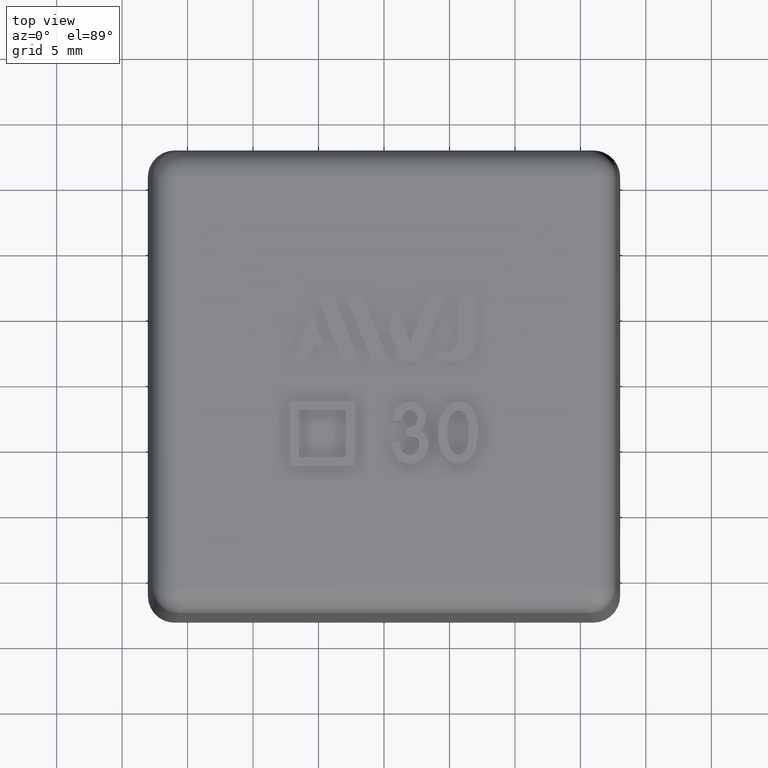
[diagram: clean part render]
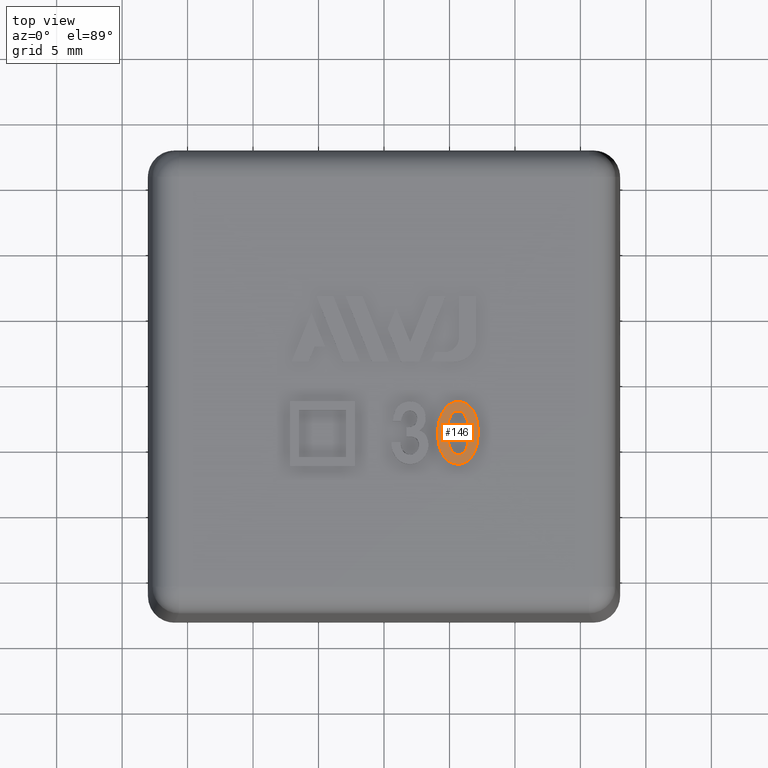
[diagram: same view with one face highlighted and labeled with its STEP entity id]
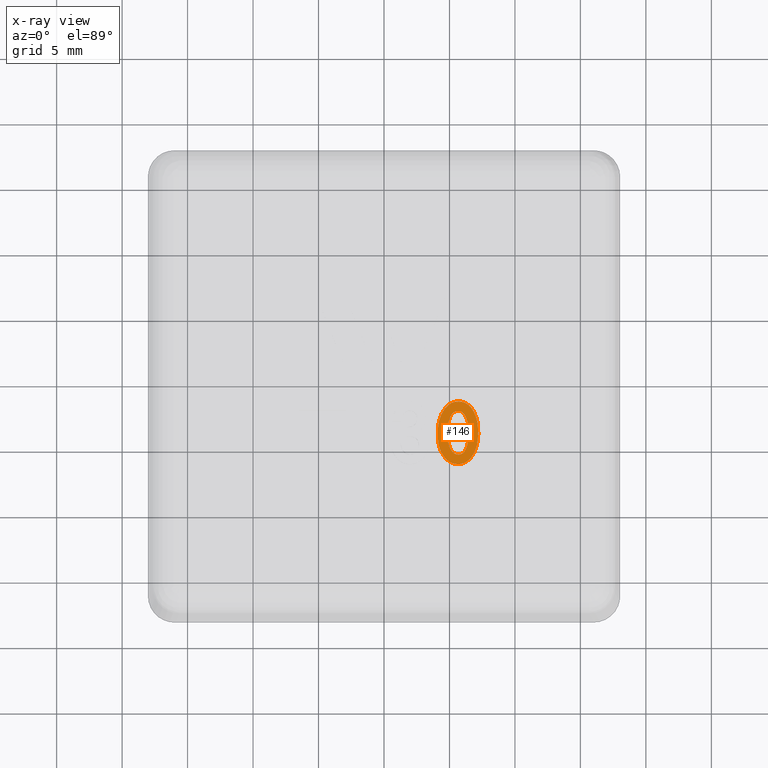
[diagram: x-ray of the same camera — body ghosted, the highlighted face saturated]
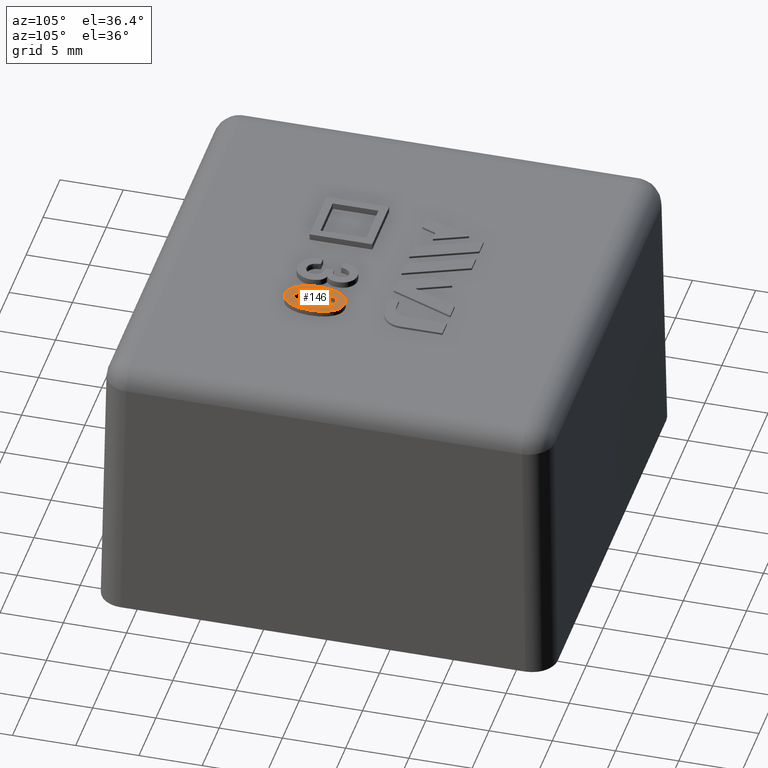
[diagram: same view with one face highlighted and labeled with its STEP entity id]
A machine part, top view. The second image highlights one B-rep face of the part: STEP entity #146.
The next image is the same camera in x-ray: the body ghosted, the highlighted face saturated — about 0% of this face is hidden behind the body in this view.
A second angle (auxiliary view) of the same face is appended — the face is thin or edge-on in the first view.
In plain terms, the highlighted planar face has unit normal (0, 0, 1).
Its self-contained STEP definition (entity closure, byte-faithful):
#146 = ADVANCED_FACE( '', ( #308, #309 ), #310, .T. );
#308 = FACE_OUTER_BOUND( '', #483, .T. );
#309 = FACE_BOUND( '', #484, .T. );
#310 = PLANE( '', #485 );
#483 = EDGE_LOOP( '', ( #1085 ) );
#484 = EDGE_LOOP( '', ( #1086 ) );
#485 = AXIS2_PLACEMENT_3D( '', #1087, #1088, #1089 );
#1085 = ORIENTED_EDGE( '', *, *, #1348, .F. );
#1086 = ORIENTED_EDGE( '', *, *, #1347, .F. );
#1087 = CARTESIAN_POINT( '', ( 6.73869744318178, -2.12522727272729, 22.7860000000000 ) );
#1088 = DIRECTION( '', ( 0.000000000000000, 0.000000000000000, 1.00000000000000 ) );
#1089 = DIRECTION( '', ( 0.000000000000000, -1.00000000000000, 0.000000000000000 ) );
#1347 = EDGE_CURVE( '', #1645, #1645, #1646, .T. );
#1348 = EDGE_CURVE( '', #1647, #1647, #1648, .T. );
#1645 = VERTEX_POINT( '', #2203 );
#1646 = B_SPLINE_CURVE_WITH_KNOTS( '', 2, ( #2204, #2205, #2206, #2207, #2208, #2209, #2210, #2211, #2212, #2213, #2214, #2215, #2216, #2217, #2218, #2219, #2220 ), .UNSPECIFIED., .T., .F., ( 3, 2, 2, 2, 2, 2, 2, 2, 3 ), ( 0.000000000000000, 1.00000000000000, 2.00000000000000, 3.00000000000000, 4.00000000000000, 5.00000000000000, 6.00000000000000, 7.00000000000000, 8.00000000000000 ), .UNSPECIFIED. );
#1647 = VERTEX_POINT( '', #2221 );
#1648 = B_SPLINE_CURVE_WITH_KNOTS( '', 2, ( #2222, #2223, #2224, #2225, #2226, #2227, #2228, #2229, #2230, #2231, #2232, #2233, #2234, #2235, #2236, #2237, #2238 ), .UNSPECIFIED., .T., .F., ( 3, 2, 2, 2, 2, 2, 2, 2, 3 ), ( 0.000000000000000, 1.00000000000000, 2.00000000000000, 3.00000000000000, 4.00000000000000, 5.00000000000000, 6.00000000000000, 7.00000000000000, 8.00000000000000 ), .UNSPECIFIED. );
#2203 = CARTESIAN_POINT( '', ( 4.99606107954542, -4.97677272727274, 22.7860000000000 ) );
#2204 = CARTESIAN_POINT( '', ( 4.99606107954542, -4.97677272727274, 22.7860000000000 ) );
#2205 = CARTESIAN_POINT( '', ( 5.20060653409087, -5.52222727272729, 22.7860000000000 ) );
#2206 = CARTESIAN_POINT( '', ( 5.58729458830470, -5.58851665344966, 22.7860000000000 ) );
#2207 = CARTESIAN_POINT( '', ( 5.99606107954542, -5.65859090909092, 22.7860000000000 ) );
#2208 = CARTESIAN_POINT( '', ( 6.23816071195887, -5.19987581609701, 22.7860000000000 ) );
#2209 = CARTESIAN_POINT( '', ( 6.42787926136360, -4.84040909090910, 22.7860000000000 ) );
#2210 = CARTESIAN_POINT( '', ( 6.46962397637564, -4.20380218697547, 22.7860000000000 ) );
#2211 = CARTESIAN_POINT( '', ( 6.51878835227269, -3.45404545454547, 22.7860000000000 ) );
#2212 = CARTESIAN_POINT( '', ( 6.33371061179875, -2.90969915903388, 22.7860000000000 ) );
#2213 = CARTESIAN_POINT( '', ( 6.13242471590905, -2.31768181818183, 22.7860000000000 ) );
#2214 = CARTESIAN_POINT( '', ( 5.76969744318178, -2.26586363636365, 22.7860000000000 ) );
#2215 = CARTESIAN_POINT( '', ( 5.33697017045451, -2.20404545454547, 22.7860000000000 ) );
#2216 = CARTESIAN_POINT( '', ( 5.11459254807689, -2.59320629370631, 22.7860000000000 ) );
#2217 = CARTESIAN_POINT( '', ( 4.88242471590905, -2.99950000000001, 22.7860000000000 ) );
#2218 = CARTESIAN_POINT( '', ( 4.84056318973134, -3.65881903729897, 22.7860000000000 ) );
#2219 = CARTESIAN_POINT( '', ( 4.79151562499996, -4.43131818181819, 22.7860000000000 ) );
#2220 = CARTESIAN_POINT( '', ( 4.99606107954542, -4.97677272727274, 22.7860000000000 ) );
#2221 = CARTESIAN_POINT( '', ( 4.58528299300314, -5.75079019452165, 22.7860000000000 ) );
#2222 = CARTESIAN_POINT( '', ( 4.58528299300314, -5.75079019452165, 22.7860000000000 ) );
#2223 = CARTESIAN_POINT( '', ( 4.13242471590905, -5.15859090909092, 22.7860000000000 ) );
#2224 = CARTESIAN_POINT( '', ( 4.10083194516419, -4.15815316883693, 22.7860000000000 ) );
#2225 = CARTESIAN_POINT( '', ( 4.06424289772723, -2.99950000000001, 22.7860000000000 ) );
#2226 = CARTESIAN_POINT( '', ( 4.53538692224205, -2.24566956077631, 22.7860000000000 ) );
#2227 = CARTESIAN_POINT( '', ( 4.97333380681814, -1.54495454545456, 22.7860000000000 ) );
#2228 = CARTESIAN_POINT( '', ( 5.67787926136360, -1.54495454545456, 22.7860000000000 ) );
#2229 = CARTESIAN_POINT( '', ( 6.33697017045451, -1.54495454545456, 22.7860000000000 ) );
#2230 = CARTESIAN_POINT( '', ( 6.73869744318178, -2.12522727272729, 22.7860000000000 ) );
#2231 = CARTESIAN_POINT( '', ( 7.15515198863633, -2.72677272727274, 22.7860000000000 ) );
#2232 = CARTESIAN_POINT( '', ( 7.19722295825956, -3.72595825582449, 22.7860000000000 ) );
#2233 = CARTESIAN_POINT( '', ( 7.24606107954542, -4.88586363636365, 22.7860000000000 ) );
#2234 = CARTESIAN_POINT( '', ( 6.79464528222798, -5.61507377049182, 22.7860000000000 ) );
#2235 = CARTESIAN_POINT( '', ( 6.35969744318178, -6.31768181818183, 22.7860000000000 ) );
#2236 = CARTESIAN_POINT( '', ( 5.67787926136360, -6.31768181818183, 22.7860000000000 ) );
#2237 = CARTESIAN_POINT( '', ( 5.01878835227269, -6.31768181818183, 22.7860000000000 ) );
#2238 = CARTESIAN_POINT( '', ( 4.58528299300314, -5.75079019452165, 22.7860000000000 ) );